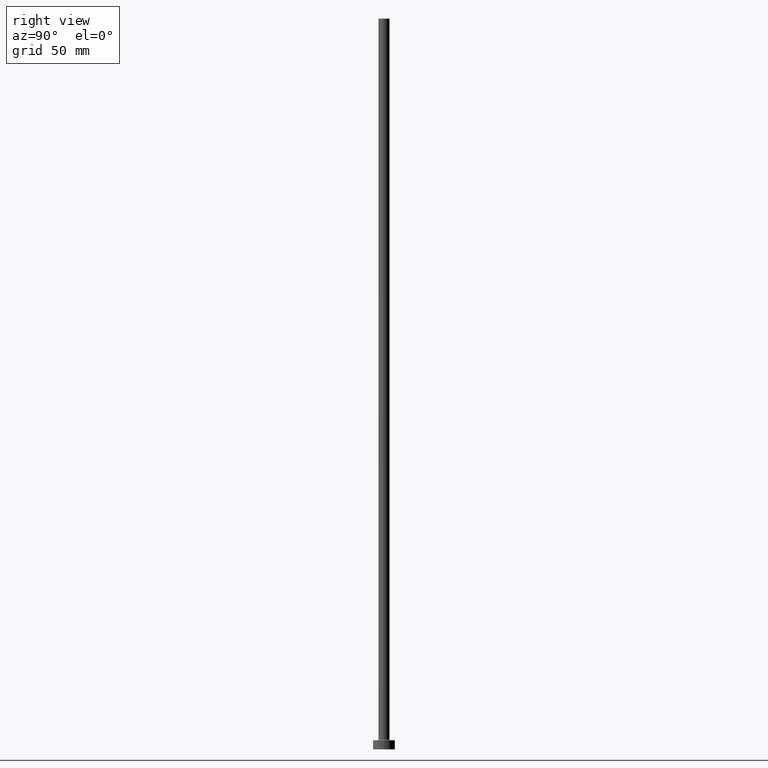
[diagram: clean part render]
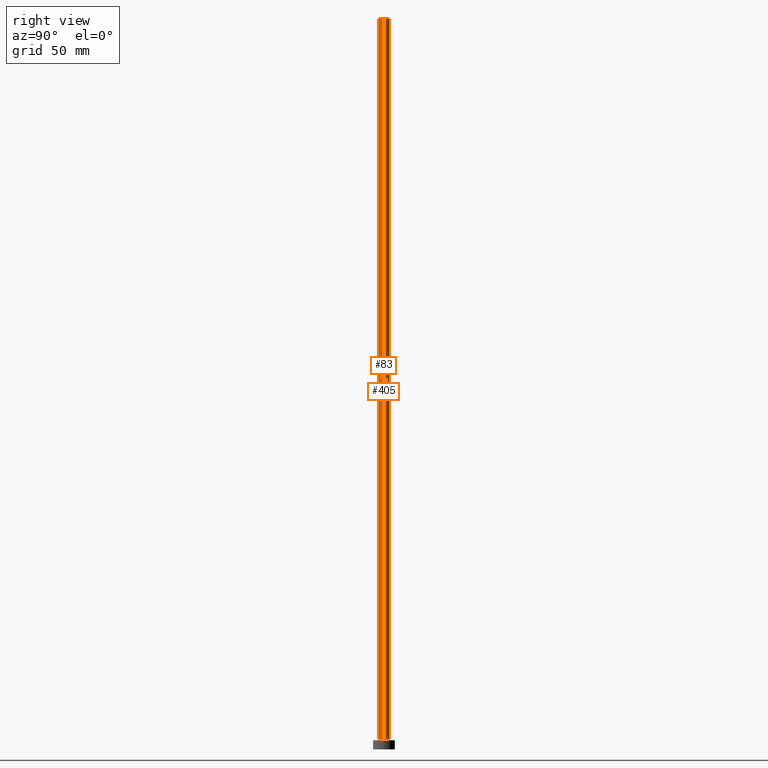
[diagram: same view with one multi-face feature highlighted, each face labeled with its STEP entity id]
A machine part, right view. The highlighted faces form ONE feature: a constant-radius fillet chain: 2 tangent blend faces with common blend radius 3 mm. The faces share edges in the B-rep.
Their STEP definitions:
[1] entity #83 (Cylinder):
#3 = DIRECTION ( 'NONE',  ( 0.000000000000000000, 0.000000000000000000, 1.000000000000000000 ) ) ;
#30 = CARTESIAN_POINT ( 'NONE',  ( 3.000000000000000444, 3.673940397442059868E-16, 400.0000000000000000 ) ) ;
#32 = CIRCLE ( 'NONE', #109, 3.000000000000000444 ) ;
#44 = EDGE_CURVE ( 'NONE', #345, #396, #32, .T. ) ;
#63 = CARTESIAN_POINT ( 'NONE',  ( 3.000000000000000444, 3.673940397442059868E-16, 400.0000000000000000 ) ) ;
#76 = DIRECTION ( 'NONE',  ( -0.000000000000000000, -0.000000000000000000, -1.000000000000000000 ) ) ;
#83 = ADVANCED_FACE ( 'NONE', ( #196 ), #264, .T. ) ;
#95 = CARTESIAN_POINT ( 'NONE',  ( 0.000000000000000000, 0.000000000000000000, 400.0000000000000000 ) ) ;
#104 = EDGE_CURVE ( 'NONE', #396, #141, #223, .T. ) ;
#109 = AXIS2_PLACEMENT_3D ( 'NONE', #169, #300, #413 ) ;
#141 = VERTEX_POINT ( 'NONE', #341 ) ;
#146 = CARTESIAN_POINT ( 'NONE',  ( 0.000000000000000000, 0.000000000000000000, 5.500000000000005329 ) ) ;
#169 = CARTESIAN_POINT ( 'NONE',  ( 0.000000000000000000, 0.000000000000000000, 400.0000000000000000 ) ) ;
#180 = VERTEX_POINT ( 'NONE', #318 ) ;
#181 = LINE ( 'NONE', #401, #244 ) ;
#196 = FACE_OUTER_BOUND ( 'NONE', #278, .T. ) ;
#219 = AXIS2_PLACEMENT_3D ( 'NONE', #95, #343, #420 ) ;
#223 = LINE ( 'NONE', #30, #257 ) ;
#241 = EDGE_CURVE ( 'NONE', #345, #180, #181, .T. ) ;
#244 = VECTOR ( 'NONE', #76, 1000.000000000000000 ) ;
#257 = VECTOR ( 'NONE', #302, 1000.000000000000000 ) ;
#264 = CYLINDRICAL_SURFACE ( 'NONE', #219, 3.000000000000000444 ) ;
#278 = EDGE_LOOP ( 'NONE', ( #314, #378, #354, #406 ) ) ;
#281 = CARTESIAN_POINT ( 'NONE',  ( -3.000000000000000444, 0.000000000000000000, 400.0000000000000000 ) ) ;
#300 = DIRECTION ( 'NONE',  ( 0.000000000000000000, 0.000000000000000000, 1.000000000000000000 ) ) ;
#301 = CIRCLE ( 'NONE', #436, 3.000000000000000444 ) ;
#302 = DIRECTION ( 'NONE',  ( -0.000000000000000000, -0.000000000000000000, -1.000000000000000000 ) ) ;
#314 = ORIENTED_EDGE ( 'NONE', *, *, #104, .F. ) ;
#318 = CARTESIAN_POINT ( 'NONE',  ( -3.000000000000000444, 0.000000000000000000, 5.500000000000005329 ) ) ;
#341 = CARTESIAN_POINT ( 'NONE',  ( 3.000000000000000444, 3.673940397442059868E-16, 5.500000000000005329 ) ) ;
#343 = DIRECTION ( 'NONE',  ( -0.000000000000000000, -0.000000000000000000, -1.000000000000000000 ) ) ;
#345 = VERTEX_POINT ( 'NONE', #281 ) ;
#354 = ORIENTED_EDGE ( 'NONE', *, *, #241, .T. ) ;
#365 = EDGE_CURVE ( 'NONE', #180, #141, #301, .T. ) ;
#378 = ORIENTED_EDGE ( 'NONE', *, *, #44, .F. ) ;
#396 = VERTEX_POINT ( 'NONE', #63 ) ;
#401 = CARTESIAN_POINT ( 'NONE',  ( -3.000000000000000444, 0.000000000000000000, 400.0000000000000000 ) ) ;
#406 = ORIENTED_EDGE ( 'NONE', *, *, #365, .T. ) ;
#413 = DIRECTION ( 'NONE',  ( 1.000000000000000000, 0.000000000000000000, 0.000000000000000000 ) ) ;
#420 = DIRECTION ( 'NONE',  ( -1.000000000000000000, 0.000000000000000000, 0.000000000000000000 ) ) ;
#430 = DIRECTION ( 'NONE',  ( 1.000000000000000000, 0.000000000000000000, 0.000000000000000000 ) ) ;
#436 = AXIS2_PLACEMENT_3D ( 'NONE', #146, #3, #430 ) ;
[2] entity #405 (Cylinder):
#16 = AXIS2_PLACEMENT_3D ( 'NONE', #200, #357, #320 ) ;
#30 = CARTESIAN_POINT ( 'NONE',  ( 3.000000000000000444, 3.673940397442059868E-16, 400.0000000000000000 ) ) ;
#43 = DIRECTION ( 'NONE',  ( 1.000000000000000000, 0.000000000000000000, 0.000000000000000000 ) ) ;
#55 = DIRECTION ( 'NONE',  ( 0.000000000000000000, 0.000000000000000000, 1.000000000000000000 ) ) ;
#63 = CARTESIAN_POINT ( 'NONE',  ( 3.000000000000000444, 3.673940397442059868E-16, 400.0000000000000000 ) ) ;
#76 = DIRECTION ( 'NONE',  ( -0.000000000000000000, -0.000000000000000000, -1.000000000000000000 ) ) ;
#104 = EDGE_CURVE ( 'NONE', #396, #141, #223, .T. ) ;
#135 = EDGE_CURVE ( 'NONE', #396, #345, #213, .T. ) ;
#141 = VERTEX_POINT ( 'NONE', #341 ) ;
#163 = DIRECTION ( 'NONE',  ( 1.000000000000000000, 0.000000000000000000, 0.000000000000000000 ) ) ;
#180 = VERTEX_POINT ( 'NONE', #318 ) ;
#181 = LINE ( 'NONE', #401, #244 ) ;
#200 = CARTESIAN_POINT ( 'NONE',  ( 0.000000000000000000, 0.000000000000000000, 400.0000000000000000 ) ) ;
#213 = CIRCLE ( 'NONE', #459, 3.000000000000000444 ) ;
#220 = AXIS2_PLACEMENT_3D ( 'NONE', #296, #294, #43 ) ;
#223 = LINE ( 'NONE', #30, #257 ) ;
#237 = CYLINDRICAL_SURFACE ( 'NONE', #16, 3.000000000000000444 ) ;
#241 = EDGE_CURVE ( 'NONE', #345, #180, #181, .T. ) ;
#244 = VECTOR ( 'NONE', #76, 1000.000000000000000 ) ;
#257 = VECTOR ( 'NONE', #302, 1000.000000000000000 ) ;
#281 = CARTESIAN_POINT ( 'NONE',  ( -3.000000000000000444, 0.000000000000000000, 400.0000000000000000 ) ) ;
#286 = ORIENTED_EDGE ( 'NONE', *, *, #104, .T. ) ;
#288 = EDGE_LOOP ( 'NONE', ( #317, #286, #346, #429 ) ) ;
#294 = DIRECTION ( 'NONE',  ( 0.000000000000000000, 0.000000000000000000, 1.000000000000000000 ) ) ;
#296 = CARTESIAN_POINT ( 'NONE',  ( 0.000000000000000000, 0.000000000000000000, 5.500000000000005329 ) ) ;
#302 = DIRECTION ( 'NONE',  ( -0.000000000000000000, -0.000000000000000000, -1.000000000000000000 ) ) ;
#317 = ORIENTED_EDGE ( 'NONE', *, *, #135, .F. ) ;
#318 = CARTESIAN_POINT ( 'NONE',  ( -3.000000000000000444, 0.000000000000000000, 5.500000000000005329 ) ) ;
#320 = DIRECTION ( 'NONE',  ( -1.000000000000000000, 0.000000000000000000, 0.000000000000000000 ) ) ;
#341 = CARTESIAN_POINT ( 'NONE',  ( 3.000000000000000444, 3.673940397442059868E-16, 5.500000000000005329 ) ) ;
#345 = VERTEX_POINT ( 'NONE', #281 ) ;
#346 = ORIENTED_EDGE ( 'NONE', *, *, #409, .T. ) ;
#357 = DIRECTION ( 'NONE',  ( -0.000000000000000000, -0.000000000000000000, -1.000000000000000000 ) ) ;
#396 = VERTEX_POINT ( 'NONE', #63 ) ;
#401 = CARTESIAN_POINT ( 'NONE',  ( -3.000000000000000444, 0.000000000000000000, 400.0000000000000000 ) ) ;
#405 = ADVANCED_FACE ( 'NONE', ( #425 ), #237, .T. ) ;
#409 = EDGE_CURVE ( 'NONE', #141, #180, #445, .T. ) ;
#422 = CARTESIAN_POINT ( 'NONE',  ( 0.000000000000000000, 0.000000000000000000, 400.0000000000000000 ) ) ;
#425 = FACE_OUTER_BOUND ( 'NONE', #288, .T. ) ;
#429 = ORIENTED_EDGE ( 'NONE', *, *, #241, .F. ) ;
#445 = CIRCLE ( 'NONE', #220, 3.000000000000000444 ) ;
#459 = AXIS2_PLACEMENT_3D ( 'NONE', #422, #55, #163 ) ;